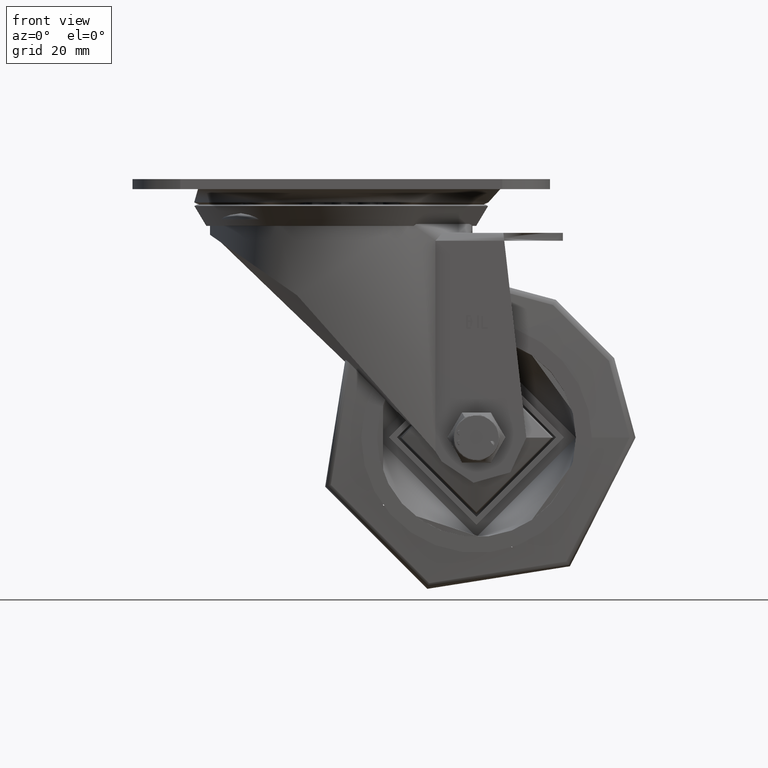
[diagram: clean part render]
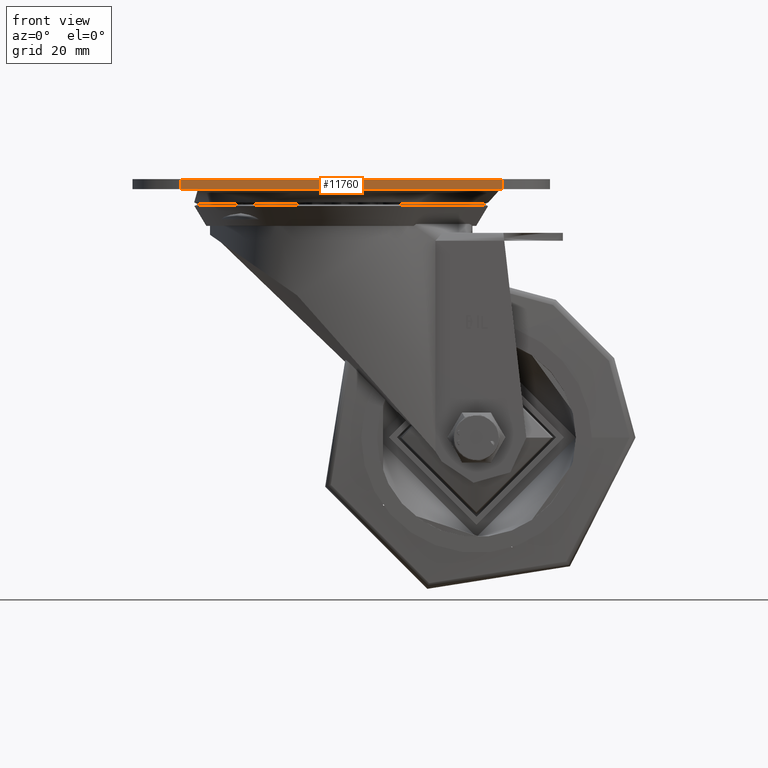
[diagram: same view with one face highlighted and labeled with its STEP entity id]
A machine part, front view. The second image highlights one B-rep face of the part: STEP entity #11760.
In plain terms, the highlighted planar face has unit normal (0, -1, 0).
Its self-contained STEP definition (entity closure, byte-faithful):
#1280=PLANE('',#12837);
#1896=FACE_OUTER_BOUND('',#2723,.T.);
#2723=EDGE_LOOP('',(#9749,#9750,#9751,#9752));
#3425=LINE('',#21277,#4158);
#3428=LINE('',#21289,#4161);
#3434=LINE('',#21357,#4167);
#3449=LINE('',#21376,#4182);
#4158=VECTOR('',#14797,1000.);
#4161=VECTOR('',#14808,1000.);
#4167=VECTOR('',#14900,1000.);
#4182=VECTOR('',#14923,1000.);
#5626=VERTEX_POINT('',#21274);
#5627=VERTEX_POINT('',#21276);
#5629=VERTEX_POINT('',#21282);
#5632=VERTEX_POINT('',#21287);
#7025=EDGE_CURVE('',#5626,#5627,#3425,.T.);
#7031=EDGE_CURVE('',#5632,#5629,#3428,.T.);
#7063=EDGE_CURVE('',#5626,#5629,#3434,.T.);
#7078=EDGE_CURVE('',#5632,#5627,#3449,.T.);
#9749=ORIENTED_EDGE('',*,*,#7031,.F.);
#9750=ORIENTED_EDGE('',*,*,#7078,.T.);
#9751=ORIENTED_EDGE('',*,*,#7025,.F.);
#9752=ORIENTED_EDGE('',*,*,#7063,.T.);
#11760=ADVANCED_FACE('',(#1896),#1280,.T.);
#12837=AXIS2_PLACEMENT_3D('',#21386,#14934,#14935);
#14797=DIRECTION('',(0.,0.,-1.));
#14808=DIRECTION('',(0.,0.,1.));
#14900=DIRECTION('',(-1.,0.,0.));
#14923=DIRECTION('',(1.,0.,0.));
#14934=DIRECTION('center_axis',(0.,-1.,0.));
#14935=DIRECTION('ref_axis',(-1.,0.,0.));
#21274=CARTESIAN_POINT('',(40.5,-42.5,0.));
#21276=CARTESIAN_POINT('',(40.5,-42.5,-2.5));
#21277=CARTESIAN_POINT('',(40.5,-42.5,0.));
#21282=CARTESIAN_POINT('',(-40.5,-42.5,0.));
#21287=CARTESIAN_POINT('',(-40.5,-42.5,-2.5));
#21289=CARTESIAN_POINT('',(-40.5,-42.5,0.));
#21357=CARTESIAN_POINT('',(52.5,-42.5,0.));
#21376=CARTESIAN_POINT('',(52.5,-42.5,-2.5));
#21386=CARTESIAN_POINT('Origin',(0.,-42.5,0.));